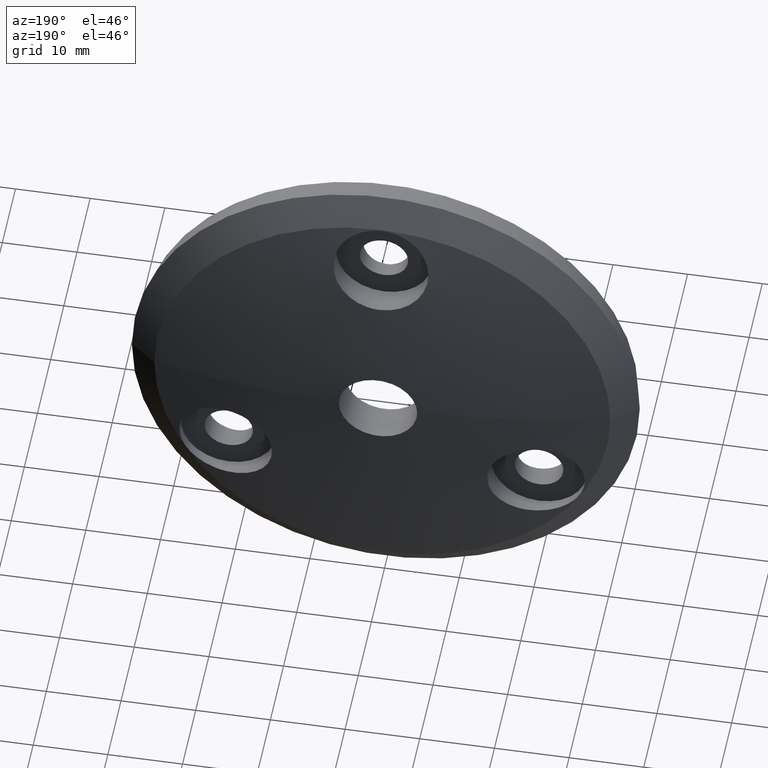
[diagram: clean part render]
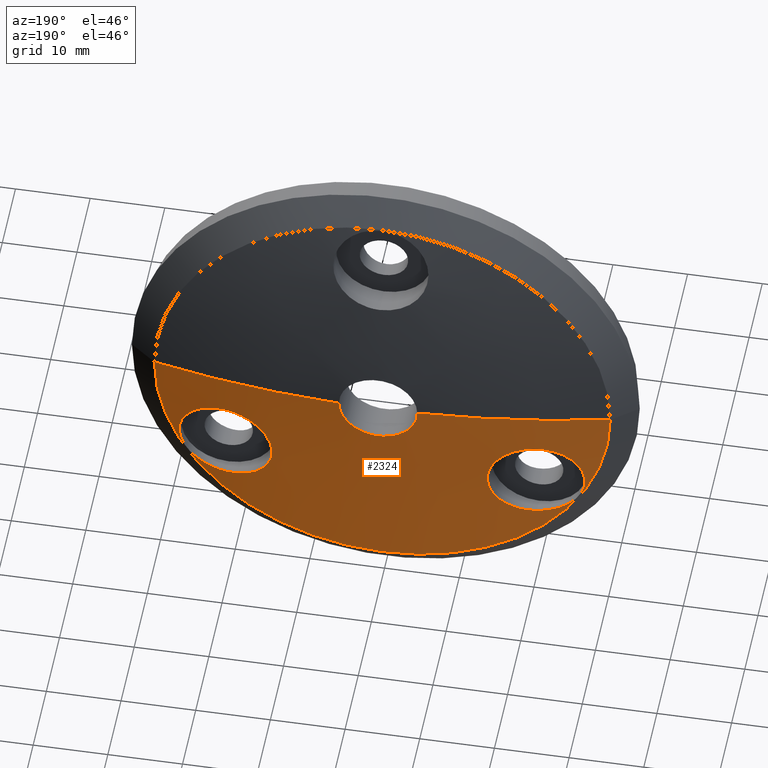
[diagram: same view with one face highlighted and labeled with its STEP entity id]
A machine part, auxiliary view. The second image highlights one B-rep face of the part: STEP entity #2324.
In plain terms, the highlighted spherical surface has radius 142 mm.
Its self-contained STEP definition (entity closure, byte-faithful):
#23 = CIRCLE ( 'NONE', #2867, 5.250000000000000888 ) ;
#106 = CARTESIAN_POINT ( 'NONE',  ( -23.02704009239609917, 1.963429579288061166, -17.97120883533888502 ) ) ;
#130 = CARTESIAN_POINT ( 'NONE',  ( 25.59906982734652559, 1.731488399794989252, -16.20002102929818832 ) ) ;
#186 = FACE_OUTER_BOUND ( 'NONE', #12449, .T. ) ;
#195 = CARTESIAN_POINT ( 'NONE',  ( -26.60685316122495792, 1.718465025379911415, -14.60503100305677116 ) ) ;
#286 = CARTESIAN_POINT ( 'NONE',  ( -26.17833661454927707, 2.301322978621450854, -8.595367127641777572 ) ) ;
#325 = CARTESIAN_POINT ( 'NONE',  ( -21.61765868483078634, 3.231044024337183629, -5.666206021732201670 ) ) ;
#503 = CARTESIAN_POINT ( 'NONE',  ( 17.61183211817966665, 2.807622817210111421, -17.54512398778976134 ) ) ;
#568 = ORIENTED_EDGE ( 'NONE', *, *, #5380, .F. ) ;
#590 = CARTESIAN_POINT ( 'NONE',  ( 16.57308718426975247, 3.845303378906187231, -7.209573069430391890 ) ) ;
#603 = CARTESIAN_POINT ( 'NONE',  ( -18.73905341875880737, 3.632106046970481117, -5.958454199332356538 ) ) ;
#648 = CARTESIAN_POINT ( 'NONE',  ( -17.59289956087030760, 3.758166891218103434, -6.465655217404046695 ) ) ;
#665 = CARTESIAN_POINT ( 'NONE',  ( 23.02135480841236514, 2.991931257962139323, -6.026668917291821082 ) ) ;
#724 = CARTESIAN_POINT ( 'NONE',  ( 20.36517422948053024, 3.420079894261370157, -5.625000000000109246 ) ) ;
#734 = CARTESIAN_POINT ( 'NONE',  ( -15.97574460662980833, 3.883655939264424539, -7.793998707655964253 ) ) ;
#768 = CARTESIAN_POINT ( 'NONE',  ( -15.74515188328803106, 3.224850034272567001, -15.90992683837642119 ) ) ;
#947 = CARTESIAN_POINT ( 'NONE',  ( 24.15640879271250441, 1.842545056514838464, -17.41434393526544966 ) ) ;
#957 = ORIENTED_EDGE ( 'NONE', *, *, #1301, .F. ) ;
#1081 = CARTESIAN_POINT ( 'NONE',  ( 27.16087778126136243, 1.846467701708132347, -12.16506777285503560 ) ) ;
#1131 = CARTESIAN_POINT ( 'NONE',  ( 26.84478493463122817, 1.733195330178438631, -14.02263461692650814 ) ) ;
#1285 = CARTESIAN_POINT ( 'NONE',  ( -27.11317001654710168, 1.943558744616247891, -11.12399514225672625 ) ) ;
#1301 = EDGE_CURVE ( 'NONE', #10494, #12827, #4008, .T. ) ;
#1336 = DIRECTION ( 'NONE',  ( -1.000000000000000000, 0.000000000000000000, -1.224646799147353207E-16 ) ) ;
#1337 = CARTESIAN_POINT ( 'NONE',  ( -23.01981858049778751, 2.992210063605901471, -6.026077427923779872 ) ) ;
#1374 = CARTESIAN_POINT ( 'NONE',  ( -22.42532654986413831, 3.096705581230736470, -5.836264030938435710 ) ) ;
#1477 = CARTESIAN_POINT ( 'NONE',  ( 16.91575705473004732, 2.950612882491112199, -17.08398434749967265 ) ) ;
#1526 = AXIS2_PLACEMENT_3D ( 'NONE', #11518, #9483, #11434 ) ;
#1560 = CARTESIAN_POINT ( 'NONE',  ( 14.40733601108577666, 3.789249325664165280, -11.61859296469764757 ) ) ;
#1613 = CARTESIAN_POINT ( 'NONE',  ( -14.56545264412100238, 3.854129060096159964, -10.58330593985154344 ) ) ;
#1659 = CARTESIAN_POINT ( 'NONE',  ( -15.04435234310572866, 3.901684289079530910, -9.195535333194170491 ) ) ;
#1745 = CARTESIAN_POINT ( 'NONE',  ( -15.08301307941230007, 3.412775608192411880, -14.85931921543783929 ) ) ;
#1767 = EDGE_CURVE ( 'NONE', #6849, #8822, #9153, .T. ) ;
#1822 = CARTESIAN_POINT ( 'NONE',  ( 17.95908295054708503, 3.720767838000077710, -6.270070992850613756 ) ) ;
#2011 = CARTESIAN_POINT ( 'NONE',  ( 26.28871159776711153, 2.269219015253649108, -8.776821958978162641 ) ) ;
#2107 = CARTESIAN_POINT ( 'NONE',  ( 21.62077189328200788, 2.142362772847607122, -18.33360667116885878 ) ) ;
#2147 = CARTESIAN_POINT ( 'NONE',  ( 26.48737968447932545, 2.208004548476875772, -9.143003520197185097 ) ) ;
#2212 = CARTESIAN_POINT ( 'NONE',  ( -26.28770897694567665, 2.269518190678776914, -8.775086535625151285 ) ) ;
#2306 = CARTESIAN_POINT ( 'NONE',  ( 1.748558775265994176E-14, -137.0000000000002842, 0.000000000000000000 ) ) ;
#2308 = CARTESIAN_POINT ( 'NONE',  ( -26.57683227965492279, 2.178604163627878343, -9.329089987950787588 ) ) ;
#2324 = ADVANCED_FACE ( 'NONE', ( #12164, #3788, #186 ), #9340, .T. ) ;
#2395 = CARTESIAN_POINT ( 'NONE',  ( -23.96112196034796327, 2.815386804352522088, -6.457369094845012647 ) ) ;
#2481 = CARTESIAN_POINT ( 'NONE',  ( 19.34598731285291606, 2.492028243628742423, -18.21404124705721728 ) ) ;
#2525 = CARTESIAN_POINT ( 'NONE',  ( 15.97492820600188423, 3.883696069050257993, -7.794941590677808563 ) ) ;
#2614 = CARTESIAN_POINT ( 'NONE',  ( 17.06912571983405158, 3.805677639689690306, -6.815439049139475181 ) ) ;
#2626 = CARTESIAN_POINT ( 'NONE',  ( -19.95475994573554601, 2.391806726778663350, -18.32420292566849795 ) ) ;
#2639 = EDGE_CURVE ( 'NONE', #9473, #5751, #9680, .T. ) ;
#2692 = CARTESIAN_POINT ( 'NONE',  ( 23.59712290671276946, 2.886084270441749311, -6.263908457038291466 ) ) ;
#2695 = DIRECTION ( 'NONE',  ( 1.000000000000000000, 0.000000000000000000, 0.000000000000000000 ) ) ;
#2722 = CARTESIAN_POINT ( 'NONE',  ( -16.56662296327440487, 3.846933465345419911, -7.201644215421236339 ) ) ;
#2867 = AXIS2_PLACEMENT_3D ( 'NONE', #10047, #11958, #4053 ) ;
#2942 = CARTESIAN_POINT ( 'NONE',  ( 26.94318246734739475, 2.040121996094323098, -10.29996354944638526 ) ) ;
#3061 = CARTESIAN_POINT ( 'NONE',  ( 27.11362600053633898, 1.799287724829912616, -12.79271109497071635 ) ) ;
#3077 = CARTESIAN_POINT ( 'NONE',  ( -21.61101015476801734, 2.143693973422706733, -18.33508084005772787 ) ) ;
#3102 = CARTESIAN_POINT ( 'NONE',  ( 26.57724901106998416, 2.178462952814826270, -9.330005923443083660 ) ) ;
#3212 = CARTESIAN_POINT ( 'NONE',  ( -27.15659363739844423, 1.901184899472829759, -11.53929745192116663 ) ) ;
#3224 = CARTESIAN_POINT ( 'NONE',  ( 20.78460969082647480, 3.357968690772990428, -5.625000000000107470 ) ) ;
#3297 = CARTESIAN_POINT ( 'NONE',  ( -26.31911854097910108, 1.712627355110728500, -15.17088235236368199 ) ) ;
#3311 = CIRCLE ( 'NONE', #5921, 142.0000000000003126 ) ;
#3387 = CARTESIAN_POINT ( 'NONE',  ( -26.51696083703172846, 1.715292853885120650, -14.79739761949364407 ) ) ;
#3480 = CARTESIAN_POINT ( 'NONE',  ( 15.38770834988912384, 3.321476215456145020, -15.39952810034788833 ) ) ;
#3502 = B_SPLINE_CURVE_WITH_KNOTS ( 'NONE', 3,
 ( #10581, #4527, #6583, #12782, #7577, #6627, #665, #2692, #3683, #10625, #11791, #7897, #7083, #8068, #2011, #2147, #3102, #12039, #2942, #11993, #4911, #1081, #12859, #3061, #9987, #9943, #1131, #8885, #9005, #4945, #130, #6039, #4035, #947, #8035, #7941, #8924, #10032, #10995, #2107, #7036, #4082 ),
 .UNSPECIFIED., .F., .F.,
 ( 4, 2, 2, 2, 2, 2, 2, 2, 2, 2, 2, 2, 2, 2, 2, 2, 2, 2, 2, 2, 4 ),
 ( 0.01499369971756615155, 0.01624849912701382959, 0.01687589883173766514, 0.01750329853646150416, 0.01875809794590918914, 0.02001289735535687758, 0.02126769676480456256, 0.02189509646952840852, 0.02252249617425225101, 0.02377729558369994292, 0.02503209499314763137, 0.02565949469787148080, 0.02628689440259533022, 0.02754169381204302214, 0.02879649322149072099, 0.03005129263093841985, 0.03130609204038611870, 0.03193349174510996813, 0.03256089144983382450, 0.03381569085928151641, 0.03507049026872920833 ),
 .UNSPECIFIED. ) ;
#3602 = CARTESIAN_POINT ( 'NONE',  ( 20.37004812343725035, 2.325504498887122740, -18.37500000000010303 ) ) ;
#3617 = CARTESIAN_POINT ( 'NONE',  ( -14.99169274469387858, 3.442507744418916715, -14.66955169967122252 ) ) ;
#3652 = CARTESIAN_POINT ( 'NONE',  ( 16.59326393445094894, 3.020985498366971278, -16.82161508492283986 ) ) ;
#3663 = CARTESIAN_POINT ( 'NONE',  ( -19.14040257460673189, 3.583134250171215562, -5.837114386690860357 ) ) ;
#3683 = CARTESIAN_POINT ( 'NONE',  ( 23.96124265604872861, 2.815367332671746325, -6.457387598679884988 ) ) ;
#3704 = CARTESIAN_POINT ( 'NONE',  ( -14.44558809784594189, 3.818990465785786714, -11.20333446772451147 ) ) ;
#3747 = CARTESIAN_POINT ( 'NONE',  ( -14.62480588114213376, 3.580064279488621715, -13.69439039461736130 ) ) ;
#3788 = FACE_BOUND ( 'NONE', #7257, .T. ) ;
#4008 = B_SPLINE_CURVE_WITH_KNOTS ( 'NONE', 3,
 ( #7596, #9681, #9584, #6563, #3663, #603, #6691, #6609, #648, #8663, #2722, #734, #5694, #9628, #1659, #11571, #12603, #9542, #1613, #3704, #11653, #8532, #7640, #3747, #5651, #3617, #1745, #5561, #6651, #768, #10605, #10651, #10692, #4731, #4648, #4688, #11692, #10564, #4606, #2626, #11618, #5736, #5608 ),
 .UNSPECIFIED., .F., .F.,
 ( 4, 2, 2, 2, 2, 2, 2, 2, 2, 2, 2, 2, 2, 2, 1, 2, 2, 2, 2, 2, 2, 4 ),
 ( 0.01513660283952668675, 0.01639168196479606765, 0.01701922152743075289, 0.01764676109006543814, 0.01890184021533480863, 0.02015691934060417911, 0.02141199846587354960, 0.02266707759114292703, 0.02329461715377761227, 0.02392215671641230099, 0.02517723584168166800, 0.02643231496695103849, 0.02768739409222040898, 0.02831493365485509422, 0.02894247321748977947, 0.02957001278012446818, 0.03019755234275915690, 0.03145263146802854820, 0.03270771059329793951, 0.03396278971856732387, 0.03459032928120202299, 0.03521786884383671518 ),
 .UNSPECIFIED. ) ;
#4009 = CARTESIAN_POINT ( 'NONE',  ( -25.59988779932709235, 1.731443836658824953, -16.19911946291476212 ) ) ;
#4035 = CARTESIAN_POINT ( 'NONE',  ( 24.67657997341591170, 1.794752328350979864, -17.06628957430759286 ) ) ;
#4053 = DIRECTION ( 'NONE',  ( -1.000000000000000000, 0.000000000000000000, 0.000000000000000000 ) ) ;
#4058 = CARTESIAN_POINT ( 'NONE',  ( -22.83121001031820541, 1.986678172814306587, -18.04115393011628399 ) ) ;
#4082 = CARTESIAN_POINT ( 'NONE',  ( 20.78460969082647836, 2.263632636090658679, -18.37500000000010658 ) ) ;
#4103 = CARTESIAN_POINT ( 'NONE',  ( -20.78460969082663823, 2.263632636090636918, -18.37499999999980105 ) ) ;
#4189 = CARTESIAN_POINT ( 'NONE',  ( -23.59694333484137019, 2.886124468973426449, -6.263751819765757567 ) ) ;
#4278 = CARTESIAN_POINT ( 'NONE',  ( -26.81876928610665090, 2.093056860873908853, -9.902035695566757667 ) ) ;
#4290 = CARTESIAN_POINT ( 'NONE',  ( -20.78460969082663823, 2.263632636090636918, -18.37499999999980105 ) ) ;
#4455 = CARTESIAN_POINT ( 'NONE',  ( 14.41208981108457543, 3.717327513096972069, -12.45396177723025311 ) ) ;
#4486 = CARTESIAN_POINT ( 'NONE',  ( 18.74507702832912059, 2.596197031768998631, -18.04350566401481615 ) ) ;
#4527 = CARTESIAN_POINT ( 'NONE',  ( 21.20417368860707441, 3.295838453241525468, -5.625000000000107470 ) ) ;
#4531 = CARTESIAN_POINT ( 'NONE',  ( 20.78460969082647836, 2.263632636090658679, -18.37500000000010658 ) ) ;
#4592 = CARTESIAN_POINT ( 'NONE',  ( 14.61601412047957815, 3.864222189852570821, -10.37725221198584613 ) ) ;
#4606 = CARTESIAN_POINT ( 'NONE',  ( -19.74726403964632837, 2.425389810965976167, -18.29345172653235707 ) ) ;
#4648 = CARTESIAN_POINT ( 'NONE',  ( -17.60449607936225647, 2.809104041918386585, -17.54056829848505572 ) ) ;
#4688 = CARTESIAN_POINT ( 'NONE',  ( -17.97628541163478388, 2.736861788919727978, -17.73806895603991052 ) ) ;
#4731 = CARTESIAN_POINT ( 'NONE',  ( -16.91653031853629940, 2.950480051900331802, -17.08418937704534457 ) ) ;
#4784 = B_SPLINE_CURVE_WITH_KNOTS ( 'NONE', 3,
 ( #4103, #12059, #3077, #6018, #10972, #4058, #106, #11012, #5056, #12009, #6057, #4009, #5010, #10929, #3297, #3387, #195, #6328, #9247, #9154, #10323, #8140, #8221, #3212, #1285, #5279, #4278, #2308, #9203, #2212, #286, #10229, #12242, #11243, #12152, #2395, #4189, #1337, #6287, #1374, #5191, #325, #7275, #8265 ),
 .UNSPECIFIED., .F., .F.,
 ( 4, 2, 2, 2, 2, 2, 2, 2, 2, 2, 2, 2, 2, 2, 2, 2, 2, 2, 2, 2, 2, 4 ),
 ( 0.03521786884383671518, 0.03647258341778727986, 0.03709994070476255179, 0.03772729799173783066, 0.03898201256568837453, 0.04023672713963891839, 0.04149144171358945532, 0.04211879900056472725, 0.04274615628753999919, 0.04400087086149052917, 0.04462822814846580111, 0.04525558543544106610, 0.04651030000939160303, 0.04776501458334213301, 0.04839237187031740495, 0.04901972915729266994, 0.05027444373124321381, 0.05152915830519375073, 0.05278387287914429460, 0.05341123016611956653, 0.05403858745309483846, 0.05529330202704538233 ),
 .UNSPECIFIED. ) ;
#4911 = CARTESIAN_POINT ( 'NONE',  ( 27.15663245209693955, 1.901120218284070740, -11.53997885615428842 ) ) ;
#4945 = CARTESIAN_POINT ( 'NONE',  ( 25.86362004096051947, 1.719919779899864221, -15.87553151334203783 ) ) ;
#4992 = EDGE_CURVE ( 'NONE', #12827, #10494, #4784, .T. ) ;
#5010 = CARTESIAN_POINT ( 'NONE',  ( -25.86436911718297438, 1.719894914621048487, -15.87452151237728160 ) ) ;
#5056 = CARTESIAN_POINT ( 'NONE',  ( -23.97493472212701349, 1.859252266696785449, -17.53538145551345195 ) ) ;
#5191 = CARTESIAN_POINT ( 'NONE',  ( -22.22487377367923855, 3.130711351063068637, -5.786399005565711740 ) ) ;
#5279 = CARTESIAN_POINT ( 'NONE',  ( -26.94288823750395423, 2.040255852862317809, -10.29892220971316164 ) ) ;
#5380 = EDGE_CURVE ( 'NONE', #5751, #11933, #23, .T. ) ;
#5455 = CARTESIAN_POINT ( 'NONE',  ( 14.56532301729996348, 3.854096804072457694, -10.58390906583224655 ) ) ;
#5561 = CARTESIAN_POINT ( 'NONE',  ( -15.28157735348734825, 3.352119148672948246, -15.22498765722622061 ) ) ;
#5608 = CARTESIAN_POINT ( 'NONE',  ( -20.78460969082663823, 2.263632636090636918, -18.37499999999980105 ) ) ;
#5651 = CARTESIAN_POINT ( 'NONE',  ( -14.74785177109436773, 3.527991415264380315, -14.09123191124074559 ) ) ;
#5694 = CARTESIAN_POINT ( 'NONE',  ( -15.71039079986791265, 3.895226227197819302, -8.117747516142022945 ) ) ;
#5712 = EDGE_CURVE ( 'NONE', #9473, #7531, #8101, .T. ) ;
#5736 = CARTESIAN_POINT ( 'NONE',  ( -20.57759649192645668, 2.294528631394989304, -18.37499999999980105 ) ) ;
#5751 = VERTEX_POINT ( 'NONE', #9398 ) ;
#5921 = AXIS2_PLACEMENT_3D ( 'NONE', #2306, #10142, #1336 ) ;
#5982 = AXIS2_PLACEMENT_3D ( 'NONE', #9702, #7706, #2695 ) ;
#6018 = CARTESIAN_POINT ( 'NONE',  ( -22.22755802331535335, 2.062086341877796158, -18.21308422637125801 ) ) ;
#6039 = CARTESIAN_POINT ( 'NONE',  ( 25.00256009187085837, 1.769062051162508142, -16.79875999264575626 ) ) ;
#6057 = CARTESIAN_POINT ( 'NONE',  ( -25.00295022055628280, 1.769030531115165950, -16.79844878072832870 ) ) ;
#6180 = DIRECTION ( 'NONE',  ( 1.000000000000000000, 0.000000000000000000, 0.000000000000000000 ) ) ;
#6229 = AXIS2_PLACEMENT_3D ( 'NONE', #11184, #8034, #6180 ) ;
#6287 = CARTESIAN_POINT ( 'NONE',  ( -22.82227280573416195, 3.027553196555839765, -5.955868802054467004 ) ) ;
#6328 = CARTESIAN_POINT ( 'NONE',  ( -26.84503125921118993, 1.733218589298987311, -14.02193907806194773 ) ) ;
#6470 = CARTESIAN_POINT ( 'NONE',  ( 15.04399159962021848, 3.901672395596824217, -9.196299812950954333 ) ) ;
#6507 = CARTESIAN_POINT ( 'NONE',  ( 19.95855879170614955, 2.390328095463909897, -18.33494568076121212 ) ) ;
#6550 = CARTESIAN_POINT ( 'NONE',  ( 14.45653952177007895, 3.674666642843639419, -12.87719603072135577 ) ) ;
#6563 = CARTESIAN_POINT ( 'NONE',  ( -19.34254501410142169, 3.557543158235891401, -5.786777093715048892 ) ) ;
#6583 = CARTESIAN_POINT ( 'NONE',  ( 21.61677442668282367, 3.231187554806765228, -5.666060709291965480 ) ) ;
#6609 = CARTESIAN_POINT ( 'NONE',  ( -17.96027605342155198, 3.720640475169258110, -6.269497984712815608 ) ) ;
#6627 = CARTESIAN_POINT ( 'NONE',  ( 22.82351915528394315, 3.027333884117675566, -5.956269486037590433 ) ) ;
#6651 = CARTESIAN_POINT ( 'NONE',  ( -15.49690707961467950, 3.289961482630221923, -15.57894947547614883 ) ) ;
#6691 = CARTESIAN_POINT ( 'NONE',  ( -18.53989026911144933, 3.655467336476372786, -6.029607891568304012 ) ) ;
#6710 = EDGE_CURVE ( 'NONE', #7531, #11933, #3311, .T. ) ;
#6849 = VERTEX_POINT ( 'NONE', #4531 ) ;
#6995 = ORIENTED_EDGE ( 'NONE', *, *, #4992, .F. ) ;
#7036 = CARTESIAN_POINT ( 'NONE',  ( 21.19929830104046431, 2.201741812597232784, -18.37500000000011724 ) ) ;
#7083 = CARTESIAN_POINT ( 'NONE',  ( 25.82896506253180746, 2.397848235952784179, -8.079730481208340365 ) ) ;
#7257 = EDGE_LOOP ( 'NONE', ( #11859, #10774 ) ) ;
#7275 = CARTESIAN_POINT ( 'NONE',  ( -21.20307030021877637, 3.296001846151829451, -5.624999999999801936 ) ) ;
#7460 = CARTESIAN_POINT ( 'NONE',  ( 15.70954108477502764, 3.895260258945961507, -8.118819684001197245 ) ) ;
#7497 = CARTESIAN_POINT ( 'NONE',  ( 15.08156402748963210, 3.413236218403847388, -14.85643944373159187 ) ) ;
#7531 = VERTEX_POINT ( 'NONE', #10984 ) ;
#7577 = CARTESIAN_POINT ( 'NONE',  ( 22.42549160373813066, 3.096679004003358937, -5.836288709102777084 ) ) ;
#7596 = CARTESIAN_POINT ( 'NONE',  ( -20.78460969082663468, 3.357968690772964671, -5.624999999999801936 ) ) ;
#7629 = CARTESIAN_POINT ( 'NONE',  ( 20.78460969082647480, 3.357968690772990428, -5.625000000000107470 ) ) ;
#7640 = CARTESIAN_POINT ( 'NONE',  ( -14.45669394048710998, 3.674539318332556093, -12.87842133386006616 ) ) ;
#7673 = CARTESIAN_POINT ( 'NONE',  ( 19.13915136749581336, 3.583290228443325898, -5.837454163507556082 ) ) ;
#7706 = DIRECTION ( 'NONE',  ( 0.000000000000000000, -0.000000000000000000, -1.000000000000000000 ) ) ;
#7794 = CARTESIAN_POINT ( 'NONE',  ( 19.95196714530147730, 3.477723030045240638, -5.665993821110320461 ) ) ;
#7897 = CARTESIAN_POINT ( 'NONE',  ( 25.56499811474947137, 2.464532308797251492, -7.762138271197844830 ) ) ;
#7941 = CARTESIAN_POINT ( 'NONE',  ( 23.60766651941351668, 1.898289285609046972, -17.71969605458691177 ) ) ;
#8034 = DIRECTION ( 'NONE',  ( 0.000000000000000000, 0.000000000000000000, 1.000000000000000000 ) ) ;
#8035 = CARTESIAN_POINT ( 'NONE',  ( 23.97733746338493788, 1.860057716498797697, -17.52187125751974861 ) ) ;
#8068 = CARTESIAN_POINT ( 'NONE',  ( 26.17930123149175259, 2.301049432594341138, -8.596871955820805766 ) ) ;
#8101 = CIRCLE ( 'NONE', #1526, 30.52391140251874901 ) ;
#8140 = CARTESIAN_POINT ( 'NONE',  ( -27.15212988939566685, 1.829756702850414918, -12.37355902449007417 ) ) ;
#8221 = CARTESIAN_POINT ( 'NONE',  ( -27.16089183441113875, 1.846503880158336219, -12.16462484229020724 ) ) ;
#8265 = CARTESIAN_POINT ( 'NONE',  ( -20.78460969082663468, 3.357968690772964671, -5.624999999999801936 ) ) ;
#8393 = CARTESIAN_POINT ( 'NONE',  ( 15.99955867958755285, 3.159487785599293108, -16.23304123491420725 ) ) ;
#8439 = CARTESIAN_POINT ( 'NONE',  ( 14.99026725424890749, 3.442985917237051829, -14.66642423996210098 ) ) ;
#8482 = CARTESIAN_POINT ( 'NONE',  ( 14.80623536127835571, 3.887318777758187682, -9.776631648200039493 ) ) ;
#8518 = CARTESIAN_POINT ( 'NONE',  ( 16.89893709706086966, 3.820040234566058679, -6.941674141139264620 ) ) ;
#8532 = CARTESIAN_POINT ( 'NONE',  ( -14.41215139092470210, 3.717216093821623879, -12.45516178793668516 ) ) ;
#8565 = CARTESIAN_POINT ( 'NONE',  ( 20.78460969082647836, 2.263632636090658679, -18.37500000000010658 ) ) ;
#8663 = CARTESIAN_POINT ( 'NONE',  ( -16.89636894789354571, 3.821355463138935260, -6.930722965618480558 ) ) ;
#8691 = CARTESIAN_POINT ( 'NONE',  ( 19.34121482490176192, 3.557713563517101996, -5.787085065629103298 ) ) ;
#8733 = CARTESIAN_POINT ( 'NONE',  ( 17.59160289534123933, 3.758295457911089432, -6.466393023393679051 ) ) ;
#8810 = CARTESIAN_POINT ( 'NONE',  ( -5.250000000000000888, 4.902915755808229470, -2.190520304603779907E-15 ) ) ;
#8822 = VERTEX_POINT ( 'NONE', #3224 ) ;
#8885 = CARTESIAN_POINT ( 'NONE',  ( 26.52730466271651721, 1.713545531084839979, -14.79968377482932951 ) ) ;
#8924 = CARTESIAN_POINT ( 'NONE',  ( 23.41604654273469066, 1.919130292449495734, -17.81034685672896245 ) ) ;
#9005 = CARTESIAN_POINT ( 'NONE',  ( 26.32706597592513731, 1.710853698982861104, -15.17762001747317946 ) ) ;
#9153 = B_SPLINE_CURVE_WITH_KNOTS ( 'NONE', 3,
 ( #8565, #3602, #6507, #2481, #10552, #4486, #11471, #9572, #503, #1477, #3652, #8393, #9393, #3480, #11509, #7497, #8439, #12507, #10412, #6550, #4455, #1560, #11426, #5455, #4592, #12410, #8482, #6470, #9476, #7460, #2525, #9433, #590, #8518, #2614, #8733, #1822, #11719, #10677, #7673, #8691, #7794, #724, #7629 ),
 .UNSPECIFIED., .F., .F.,
 ( 4, 2, 2, 2, 2, 2, 2, 2, 2, 2, 2, 2, 2, 2, 2, 2, 2, 2, 2, 2, 2, 4 ),
 ( 0.03507049026872920833, 0.03632490526139388332, 0.03695211275772622428, 0.03757932025405856524, 0.03883373524672324717, 0.04008815023938792910, 0.04134256523205261102, 0.04196977272838495199, 0.04259698022471729295, 0.04385139521738197488, 0.04510581021004664987, 0.04636022520271133179, 0.04698743269904367970, 0.04761464019537602066, 0.04886905518804070953, 0.05012347018070539839, 0.05075067767703775323, 0.05137788517337009420, 0.05263230016603479000, 0.05325950766236713790, 0.05388671515869948581, 0.05514113015136418855 ),
 .UNSPECIFIED. ) ;
#9154 = CARTESIAN_POINT ( 'NONE',  ( -27.08374935853242249, 1.785598897346424740, -13.00278065539946759 ) ) ;
#9203 = CARTESIAN_POINT ( 'NONE',  ( -26.48682359726550217, 2.208185572791604212, -9.141866838160737530 ) ) ;
#9247 = CARTESIAN_POINT ( 'NONE',  ( -26.96426741157852902, 1.750002757536031517, -13.62138022646886881 ) ) ;
#9340 = SPHERICAL_SURFACE ( 'NONE', #5982, 142.0000000000003126 ) ;
#9393 = CARTESIAN_POINT ( 'NONE',  ( 15.73497664387419803, 3.226093641359059294, -15.91314102053459401 ) ) ;
#9398 = CARTESIAN_POINT ( 'NONE',  ( 5.250000000000000888, 4.902915755808229470, 0.000000000000000000 ) ) ;
#9433 = CARTESIAN_POINT ( 'NONE',  ( 16.41789493837800151, 3.856182035983874545, -7.350681870040835619 ) ) ;
#9473 = VERTEX_POINT ( 'NONE', #11706 ) ;
#9476 = CARTESIAN_POINT ( 'NONE',  ( 15.24085110743520666, 3.904335553276040649, -8.824055609664837263 ) ) ;
#9483 = DIRECTION ( 'NONE',  ( 1.912064095349771562E-17, 1.000000000000000000, -0.000000000000000000 ) ) ;
#9542 = CARTESIAN_POINT ( 'NONE',  ( -14.61617669479159254, 3.864250415947310557, -10.37663928445574157 ) ) ;
#9572 = CARTESIAN_POINT ( 'NONE',  ( 17.97856226129154322, 2.736438737871769167, -17.73904979882997424 ) ) ;
#9584 = CARTESIAN_POINT ( 'NONE',  ( -19.95324256767250048, 3.477548329880149058, -5.665829859665769241 ) ) ;
#9628 = CARTESIAN_POINT ( 'NONE',  ( -15.24190368652912753, 3.904332679449813437, -8.822266239643747454 ) ) ;
#9680 = CIRCLE ( 'NONE', #6229, 142.0000000000003126 ) ;
#9681 = CARTESIAN_POINT ( 'NONE',  ( -20.36602749970570159, 3.419953539564477563, -5.624999999999802824 ) ) ;
#9702 = CARTESIAN_POINT ( 'NONE',  ( 1.748558775265994176E-14, -137.0000000000002842, 0.000000000000000000 ) ) ;
#9943 = CARTESIAN_POINT ( 'NONE',  ( 26.96409488525709008, 1.749966930122840658, -13.62209331823584790 ) ) ;
#9987 = CARTESIAN_POINT ( 'NONE',  ( 27.08368826081964542, 1.785572923589856309, -13.00318688157590508 ) ) ;
#10032 = CARTESIAN_POINT ( 'NONE',  ( 22.83481247051663132, 1.985304470063275373, -18.05088056124646201 ) ) ;
#10047 = CARTESIAN_POINT ( 'NONE',  ( 9.374689179205604584E-17, 4.902915755808229470, 0.000000000000000000 ) ) ;
#10142 = DIRECTION ( 'NONE',  ( 1.224646799147353207E-16, -2.341603174134677467E-33, -1.000000000000000000 ) ) ;
#10218 = CARTESIAN_POINT ( 'NONE',  ( -20.78460969082663468, 3.357968690772964671, -5.624999999999801936 ) ) ;
#10229 = CARTESIAN_POINT ( 'NONE',  ( -25.82854325435727461, 2.397950671969695691, -8.079270514353734001 ) ) ;
#10323 = CARTESIAN_POINT ( 'NONE',  ( -27.11366191072221810, 1.799305967497353276, -12.79243789775415330 ) ) ;
#10375 = ORIENTED_EDGE ( 'NONE', *, *, #6710, .T. ) ;
#10412 = CARTESIAN_POINT ( 'NONE',  ( 14.62436833498958855, 3.580269768278186326, -13.69274078897265845 ) ) ;
#10494 = VERTEX_POINT ( 'NONE', #10218 ) ;
#10500 = EDGE_LOOP ( 'NONE', ( #957, #6995 ) ) ;
#10552 = CARTESIAN_POINT ( 'NONE',  ( 19.14227202452335774, 2.526742430284456553, -18.16330927199136980 ) ) ;
#10564 = CARTESIAN_POINT ( 'NONE',  ( -19.13709761673250753, 2.526744892598596692, -18.17238296791319740 ) ) ;
#10581 = CARTESIAN_POINT ( 'NONE',  ( 20.78460969082647480, 3.357968690772990428, -5.625000000000107470 ) ) ;
#10605 = CARTESIAN_POINT ( 'NONE',  ( -16.01001908246347583, 3.158244055655805571, -16.22929632420668966 ) ) ;
#10625 = CARTESIAN_POINT ( 'NONE',  ( 24.65051959613435884, 2.673630046828322726, -6.914108747618884721 ) ) ;
#10651 = CARTESIAN_POINT ( 'NONE',  ( -16.15153542782153906, 3.124016101133356038, -16.38391502251567289 ) ) ;
#10677 = CARTESIAN_POINT ( 'NONE',  ( 18.73815176468031396, 3.632212738573395772, -5.958765503872400338 ) ) ;
#10692 = CARTESIAN_POINT ( 'NONE',  ( -16.59601849282293173, 3.020379204920189853, -16.82391759679263288 ) ) ;
#10774 = ORIENTED_EDGE ( 'NONE', *, *, #1767, .F. ) ;
#10929 = CARTESIAN_POINT ( 'NONE',  ( -26.21165600953136021, 1.713116510521027980, -15.35135870946623271 ) ) ;
#10972 = CARTESIAN_POINT ( 'NONE',  ( -22.43201994312653724, 2.035932766552502216, -18.16199262704195405 ) ) ;
#10984 = CARTESIAN_POINT ( 'NONE',  ( -30.52391140251874901, 1.680535161540238631, -3.738101039655201076E-15 ) ) ;
#10995 = CARTESIAN_POINT ( 'NONE',  ( 22.43691216800012000, 2.034415539571039044, -18.17119414844611924 ) ) ;
#11012 = CARTESIAN_POINT ( 'NONE',  ( -23.60334677244363988, 1.897785301613456932, -17.73307618204859892 ) ) ;
#11184 = CARTESIAN_POINT ( 'NONE',  ( 1.748558775265994176E-14, -137.0000000000002842, 0.000000000000000000 ) ) ;
#11243 = CARTESIAN_POINT ( 'NONE',  ( -24.97615751632203995, 2.602404165445511897, -7.178895877561428662 ) ) ;
#11426 = CARTESIAN_POINT ( 'NONE',  ( 14.44562633077378599, 3.818990169130318080, -11.20327168600430490 ) ) ;
#11434 = DIRECTION ( 'NONE',  ( -1.000000000000000000, 2.131185924742342936E-17, 0.000000000000000000 ) ) ;
#11471 = CARTESIAN_POINT ( 'NONE',  ( 18.55049384131176282, 2.631116504678583823, -17.97426512748728200 ) ) ;
#11472 = ORIENTED_EDGE ( 'NONE', *, *, #2639, .F. ) ;
#11509 = CARTESIAN_POINT ( 'NONE',  ( 15.28010334544888593, 3.352551723146614648, -15.22248134633992933 ) ) ;
#11518 = CARTESIAN_POINT ( 'NONE',  ( 3.213290943353922085E-17, 1.680535161540240408, 0.000000000000000000 ) ) ;
#11571 = CARTESIAN_POINT ( 'NONE',  ( -14.80643604058699481, 3.887335823641481003, -9.776083931678748229 ) ) ;
#11618 = CARTESIAN_POINT ( 'NONE',  ( -20.37022756643640520, 2.326334163160661106, -18.36494153150266939 ) ) ;
#11653 = CARTESIAN_POINT ( 'NONE',  ( -14.40728403289088888, 3.789217113296060369, -11.61906104186969380 ) ) ;
#11692 = CARTESIAN_POINT ( 'NONE',  ( -18.74224479674618493, 2.595801460665334126, -18.05316993324943198 ) ) ;
#11706 = CARTESIAN_POINT ( 'NONE',  ( 30.52391140251877033, 1.680535161540238187, 0.000000000000000000 ) ) ;
#11719 = CARTESIAN_POINT ( 'NONE',  ( 18.53894340126731777, 3.655577187088994595, -6.029960334077497208 ) ) ;
#11791 = CARTESIAN_POINT ( 'NONE',  ( 24.97752689169682938, 2.602093114970533971, -7.180142028786699271 ) ) ;
#11859 = ORIENTED_EDGE ( 'NONE', *, *, #12413, .F. ) ;
#11933 = VERTEX_POINT ( 'NONE', #8810 ) ;
#11958 = DIRECTION ( 'NONE',  ( 1.912064095349771562E-17, 1.000000000000000000, -0.000000000000000000 ) ) ;
#11993 = CARTESIAN_POINT ( 'NONE',  ( 27.11335135509193250, 1.943422449668504859, -11.12525916757812539 ) ) ;
#12009 = CARTESIAN_POINT ( 'NONE',  ( -24.67657726328522472, 1.794719380392022945, -17.06667643315762817 ) ) ;
#12039 = CARTESIAN_POINT ( 'NONE',  ( 26.81892895588877579, 2.092988079534698898, -9.902556160365456606 ) ) ;
#12059 = CARTESIAN_POINT ( 'NONE',  ( -21.19851583017770480, 2.201858593634578476, -18.37499999999980460 ) ) ;
#12152 = CARTESIAN_POINT ( 'NONE',  ( -24.64932199286372239, 2.673881649157876961, -6.913253852246822539 ) ) ;
#12164 = FACE_BOUND ( 'NONE', #10500, .T. ) ;
#12242 = CARTESIAN_POINT ( 'NONE',  ( -25.56465342878427194, 2.464622590758834164, -7.761686656696880959 ) ) ;
#12410 = CARTESIAN_POINT ( 'NONE',  ( 14.73641812573183607, 3.880799204783390355, -9.974102548023196846 ) ) ;
#12413 = EDGE_CURVE ( 'NONE', #8822, #6849, #3502, .T. ) ;
#12449 = EDGE_LOOP ( 'NONE', ( #12761, #10375, #568, #11472 ) ) ;
#12507 = CARTESIAN_POINT ( 'NONE',  ( 14.74717590137142942, 3.528271955008503991, -14.08911661643604774 ) ) ;
#12603 = CARTESIAN_POINT ( 'NONE',  ( -14.73659652047640911, 3.880817906146910357, -9.973574000705546894 ) ) ;
#12761 = ORIENTED_EDGE ( 'NONE', *, *, #5712, .T. ) ;
#12782 = CARTESIAN_POINT ( 'NONE',  ( 22.22465427648659997, 3.130748906982315116, -5.786340722826486704 ) ) ;
#12827 = VERTEX_POINT ( 'NONE', #4290 ) ;
#12859 = CARTESIAN_POINT ( 'NONE',  ( 27.15210607581952473, 1.829727684787573638, -12.37393597816143753 ) ) ;